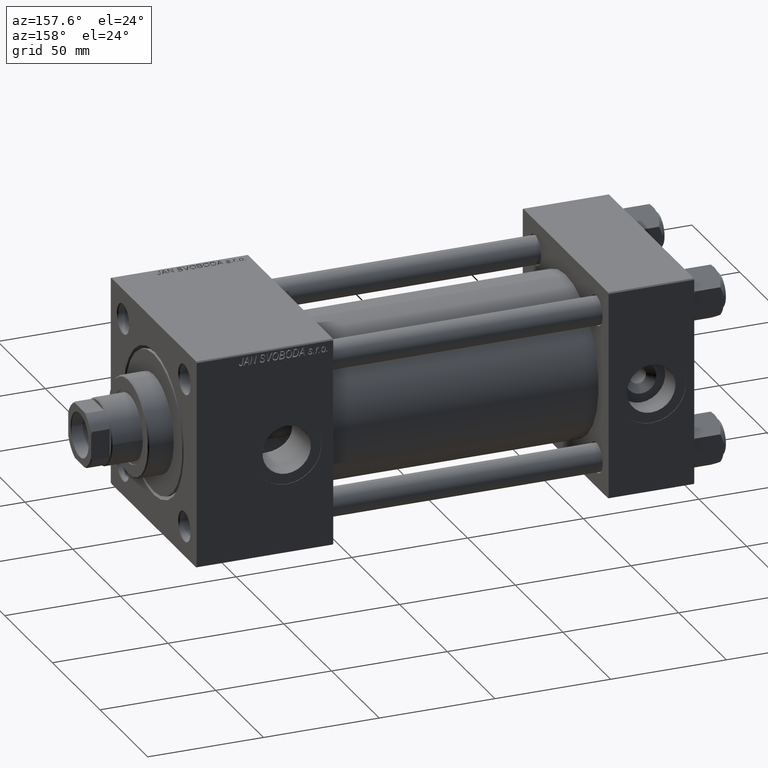
[diagram: clean part render]
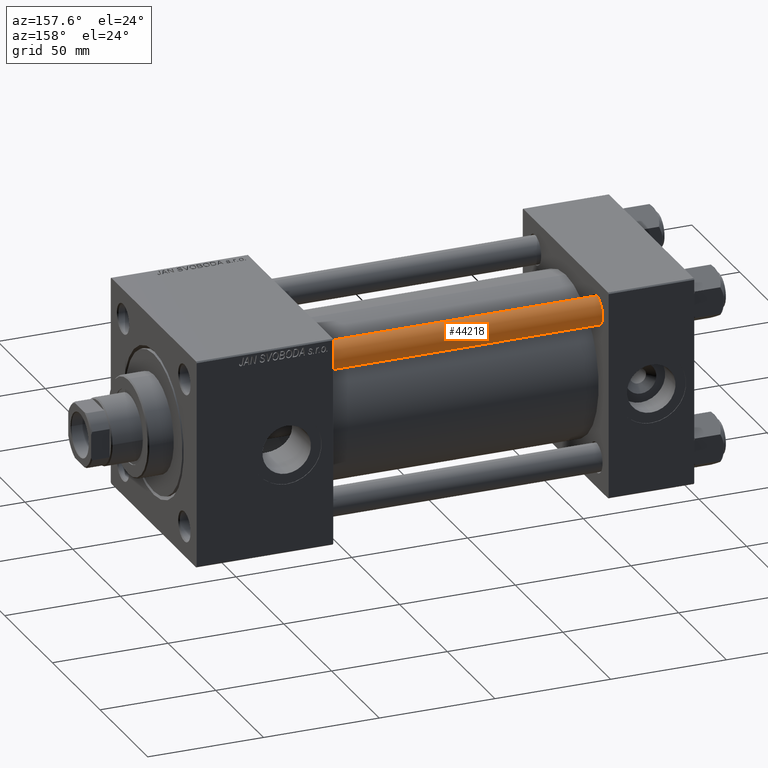
[diagram: same view with one face highlighted and labeled with its STEP entity id]
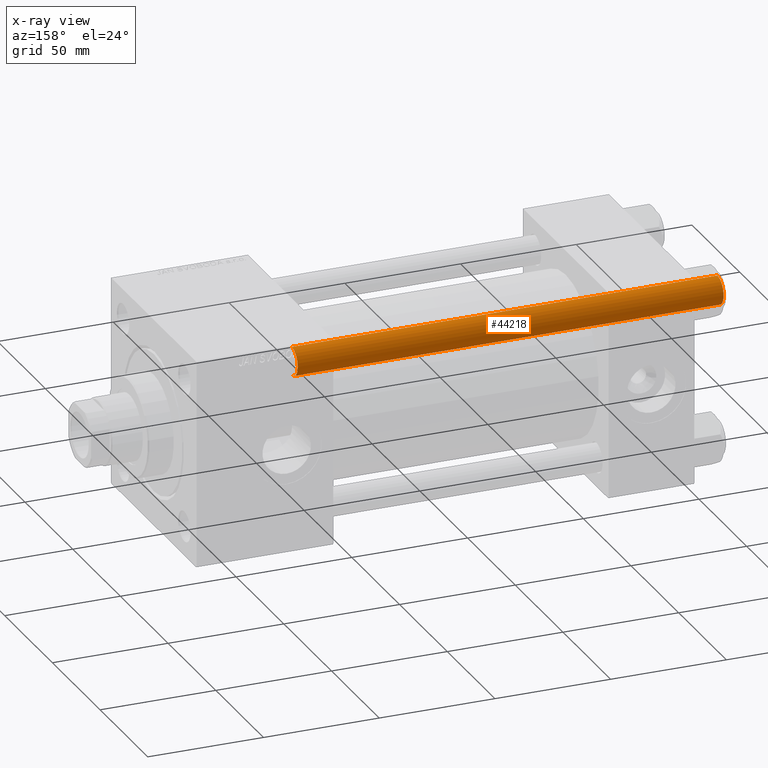
[diagram: x-ray of the same camera — body ghosted, the highlighted face saturated]
A machine part, auxiliary view. The second image highlights one B-rep face of the part: STEP entity #44218.
The next image is the same camera in x-ray: the body ghosted, the highlighted face saturated — about 0% of this face is hidden behind the body in this view.
In plain terms, the highlighted cylindrical surface (edge-blend (fillet) strip) has radius 6 mm, axis along (-1, 0, 0).
Its self-contained STEP definition (entity closure, byte-faithful):
#258 = CARTESIAN_POINT ( 'NONE',  ( 0.000000000000000000, 0.000000000000000000, 0.5000000000000281997 ) ) ;
#715 = CARTESIAN_POINT ( 'NONE',  ( 6.000000000000000888, 7.347880794884120722E-16, 184.5000000000000000 ) ) ;
#1396 = VERTEX_POINT ( 'NONE', #715 ) ;
#4065 = DIRECTION ( 'NONE',  ( -0.000000000000000000, -0.000000000000000000, 1.000000000000000000 ) ) ;
#6930 = CARTESIAN_POINT ( 'NONE',  ( 0.000000000000000000, 0.000000000000000000, 185.0000000000000000 ) ) ;
#10371 = EDGE_CURVE ( 'NONE', #21742, #46485, #35416, .T. ) ;
#10733 = DIRECTION ( 'NONE',  ( -1.000000000000000000, 0.000000000000000000, 0.000000000000000000 ) ) ;
#11489 = DIRECTION ( 'NONE',  ( 0.000000000000000000, 0.000000000000000000, -1.000000000000000000 ) ) ;
#11584 = AXIS2_PLACEMENT_3D ( 'NONE', #6930, #50083, #10733 ) ;
#13143 = EDGE_CURVE ( 'NONE', #21742, #1396, #30785, .T. ) ;
#14596 = CARTESIAN_POINT ( 'NONE',  ( -6.000000000000000888, 0.000000000000000000, 0.5000000000000281997 ) ) ;
#15119 = ORIENTED_EDGE ( 'NONE', *, *, #42312, .T. ) ;
#15241 = DIRECTION ( 'NONE',  ( 1.000000000000000000, 0.000000000000000000, 0.000000000000000000 ) ) ;
#16819 = CARTESIAN_POINT ( 'NONE',  ( 6.000000000000000888, 7.347880794884120722E-16, 185.0000000000000000 ) ) ;
#18127 = VERTEX_POINT ( 'NONE', #49601 ) ;
#21742 = VERTEX_POINT ( 'NONE', #49879 ) ;
#22890 = CIRCLE ( 'NONE', #27781, 6.000000000000000888 ) ;
#23173 = DIRECTION ( 'NONE',  ( 1.000000000000000000, 0.000000000000000000, 0.000000000000000000 ) ) ;
#23451 = AXIS2_PLACEMENT_3D ( 'NONE', #49607, #11489, #23173 ) ;
#27781 = AXIS2_PLACEMENT_3D ( 'NONE', #258, #4065, #15241 ) ;
#28068 = CARTESIAN_POINT ( 'NONE',  ( -6.000000000000000888, 0.000000000000000000, 185.0000000000000000 ) ) ;
#29888 = VECTOR ( 'NONE', #43544, 1000.000000000000000 ) ;
#30785 = CIRCLE ( 'NONE', #23451, 6.000000000000000888 ) ;
#34556 = ORIENTED_EDGE ( 'NONE', *, *, #38063, .T. ) ;
#35416 = LINE ( 'NONE', #28068, #29888 ) ;
#35505 = EDGE_LOOP ( 'NONE', ( #45927, #34556, #15119, #39355 ) ) ;
#35866 = LINE ( 'NONE', #16819, #37360 ) ;
#37360 = VECTOR ( 'NONE', #48053, 1000.000000000000000 ) ;
#38063 = EDGE_CURVE ( 'NONE', #1396, #18127, #35866, .T. ) ;
#39355 = ORIENTED_EDGE ( 'NONE', *, *, #10371, .F. ) ;
#42312 = EDGE_CURVE ( 'NONE', #18127, #46485, #22890, .T. ) ;
#43544 = DIRECTION ( 'NONE',  ( -0.000000000000000000, -0.000000000000000000, -1.000000000000000000 ) ) ;
#44218 = ADVANCED_FACE ( 'NONE', ( #49829 ), #45527, .T. ) ;
#45527 = CYLINDRICAL_SURFACE ( 'NONE', #11584, 6.000000000000000888 ) ;
#45927 = ORIENTED_EDGE ( 'NONE', *, *, #13143, .T. ) ;
#46485 = VERTEX_POINT ( 'NONE', #14596 ) ;
#48053 = DIRECTION ( 'NONE',  ( -0.000000000000000000, -0.000000000000000000, -1.000000000000000000 ) ) ;
#49601 = CARTESIAN_POINT ( 'NONE',  ( 6.000000000000000888, 7.347880794884120722E-16, 0.5000000000000281997 ) ) ;
#49607 = CARTESIAN_POINT ( 'NONE',  ( 0.000000000000000000, 0.000000000000000000, 184.5000000000000000 ) ) ;
#49829 = FACE_OUTER_BOUND ( 'NONE', #35505, .T. ) ;
#49879 = CARTESIAN_POINT ( 'NONE',  ( -6.000000000000000888, 0.000000000000000000, 184.5000000000000000 ) ) ;
#50083 = DIRECTION ( 'NONE',  ( -0.000000000000000000, -0.000000000000000000, -1.000000000000000000 ) ) ;